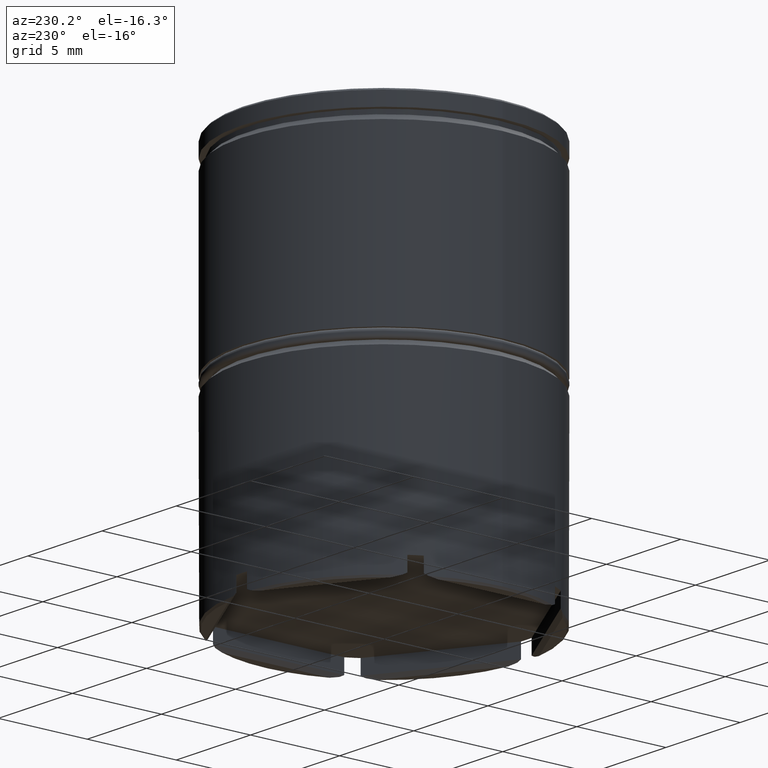
[diagram: clean part render]
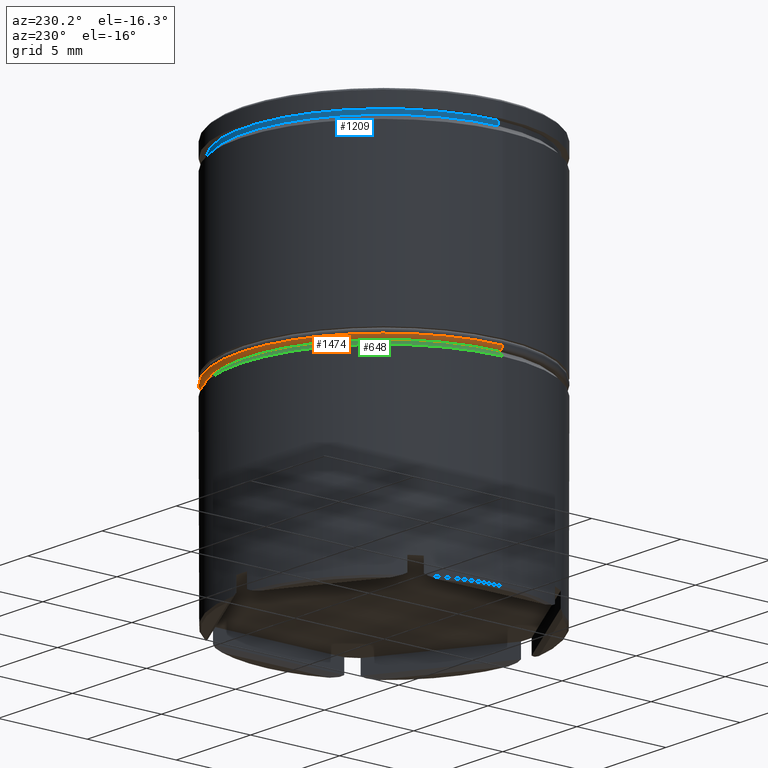
[diagram: same view with three faces highlighted in distinct colors, each labeled with its STEP entity id]
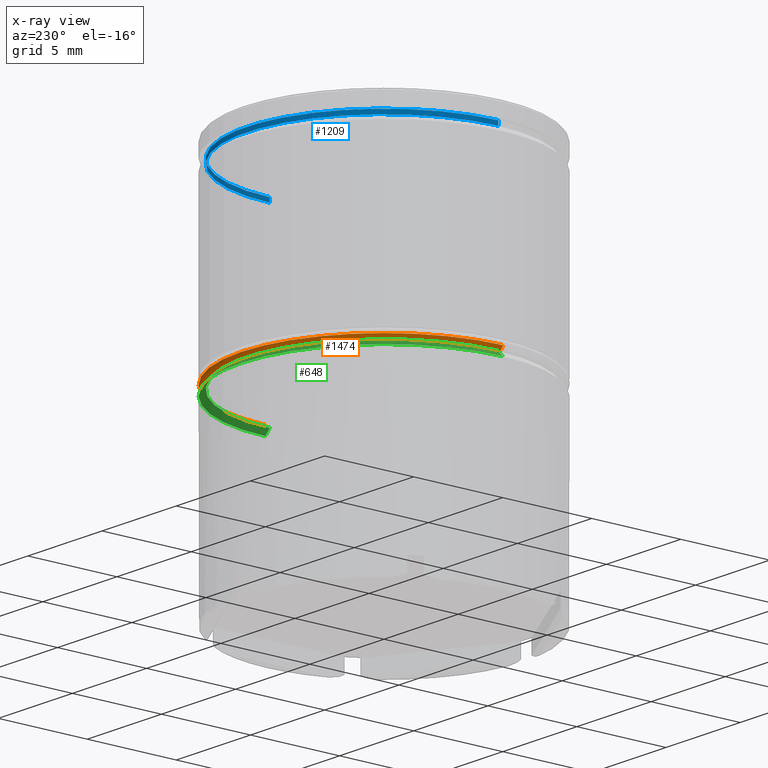
[diagram: x-ray of the same camera — body ghosted, the three highlighted faces saturated]
A machine part, auxiliary view with three faces highlighted in distinct colors.
The next image is the same camera in x-ray (body ghosted, the three faces saturated) — at least one of them is partly hidden behind the body in this view.
Their STEP definitions:

[orange] entity #1474 — the highlighted toroidal blend (fillet) surface has major radius 7.8 mm and minor (blend) radius 0.2 mm.
#44 = CARTESIAN_POINT ( 'NONE',  ( -7.800000000000000711, 9.674709713264090115E-16, -11.24999999999999822 ) ) ;
#100 = CIRCLE ( 'NONE', #1190, 8.000000000000000000 ) ;
#104 = VERTEX_POINT ( 'NONE', #891 ) ;
#144 = CARTESIAN_POINT ( 'NONE',  ( 0.000000000000000000, 0.000000000000000000, -11.24999999999999822 ) ) ;
#169 = DIRECTION ( 'NONE',  ( 0.000000000000000000, 0.000000000000000000, 1.000000000000000000 ) ) ;
#288 = AXIS2_PLACEMENT_3D ( 'NONE', #1483, #1118, #759 ) ;
#324 = ORIENTED_EDGE ( 'NONE', *, *, #492, .T. ) ;
#325 = DIRECTION ( 'NONE',  ( -1.000000000000000000, 1.224646799147358384E-16, 0.000000000000000000 ) ) ;
#358 = VERTEX_POINT ( 'NONE', #1136 ) ;
#397 = EDGE_CURVE ( 'NONE', #710, #358, #950, .T. ) ;
#449 = TOROIDAL_SURFACE ( 'NONE', #790, 7.800000000000000711, 0.2000000000000000111 ) ;
#484 = EDGE_CURVE ( 'NONE', #664, #104, #100, .T. ) ;
#492 = EDGE_CURVE ( 'NONE', #710, #104, #1216, .T. ) ;
#528 = DIRECTION ( 'NONE',  ( 1.000000000000000000, 0.000000000000000000, 0.000000000000000000 ) ) ;
#560 = DIRECTION ( 'NONE',  ( 1.000000000000000000, 0.000000000000000000, 0.000000000000000000 ) ) ;
#569 = DIRECTION ( 'NONE',  ( 1.224646799147353207E-16, 1.000000000000000000, -0.000000000000000000 ) ) ;
#574 = EDGE_LOOP ( 'NONE', ( #647, #324, #908, #1511 ) ) ;
#636 = DIRECTION ( 'NONE',  ( -0.000000000000000000, -0.000000000000000000, -1.000000000000000000 ) ) ;
#647 = ORIENTED_EDGE ( 'NONE', *, *, #397, .F. ) ;
#653 = CARTESIAN_POINT ( 'NONE',  ( 0.000000000000000000, 0.000000000000000000, -11.04999999999999716 ) ) ;
#664 = VERTEX_POINT ( 'NONE', #1262 ) ;
#695 = CARTESIAN_POINT ( 'NONE',  ( 0.000000000000000000, 0.000000000000000000, -11.04999999999999716 ) ) ;
#710 = VERTEX_POINT ( 'NONE', #44 ) ;
#759 = DIRECTION ( 'NONE',  ( 0.000000000000000000, 0.000000000000000000, -1.000000000000000000 ) ) ;
#790 = AXIS2_PLACEMENT_3D ( 'NONE', #653, #1290, #528 ) ;
#810 = FACE_OUTER_BOUND ( 'NONE', #574, .T. ) ;
#891 = CARTESIAN_POINT ( 'NONE',  ( -8.000000000000000000, 9.797174393178823685E-16, -11.04999999999999716 ) ) ;
#908 = ORIENTED_EDGE ( 'NONE', *, *, #484, .F. ) ;
#950 = CIRCLE ( 'NONE', #1317, 7.800000000000000711 ) ;
#1000 = AXIS2_PLACEMENT_3D ( 'NONE', #1552, #569, #325 ) ;
#1118 = DIRECTION ( 'NONE',  ( 0.000000000000000000, -1.000000000000000000, 0.000000000000000000 ) ) ;
#1136 = CARTESIAN_POINT ( 'NONE',  ( 7.800000000000000711, 0.000000000000000000, -11.24999999999999822 ) ) ;
#1148 = EDGE_CURVE ( 'NONE', #358, #664, #1500, .T. ) ;
#1190 = AXIS2_PLACEMENT_3D ( 'NONE', #695, #169, #560 ) ;
#1216 = CIRCLE ( 'NONE', #1000, 0.1999999999999996503 ) ;
#1262 = CARTESIAN_POINT ( 'NONE',  ( 8.000000000000000000, 0.000000000000000000, -11.04999999999999716 ) ) ;
#1290 = DIRECTION ( 'NONE',  ( 0.000000000000000000, 0.000000000000000000, 1.000000000000000000 ) ) ;
#1317 = AXIS2_PLACEMENT_3D ( 'NONE', #144, #636, #1635 ) ;
#1474 = ADVANCED_FACE ( 'NONE', ( #810 ), #449, .T. ) ;
#1483 = CARTESIAN_POINT ( 'NONE',  ( 7.800000000000000711, 0.000000000000000000, -11.04999999999999716 ) ) ;
#1500 = CIRCLE ( 'NONE', #288, 0.2000000000000005107 ) ;
#1511 = ORIENTED_EDGE ( 'NONE', *, *, #1148, .F. ) ;
#1552 = CARTESIAN_POINT ( 'NONE',  ( -7.800000000000000711, 9.552245033349356544E-16, -11.04999999999999716 ) ) ;
#1635 = DIRECTION ( 'NONE',  ( 1.000000000000000000, 0.000000000000000000, 0.000000000000000000 ) ) ;

[blue] entity #1209 — the highlighted cylindrical surface (partial cylindrical patch) has radius 7.7 mm, axis along (-0, -0, 1).
#172 = LINE ( 'NONE', #303, #897 ) ;
#257 = CIRCLE ( 'NONE', #1389, 7.700000000000000178 ) ;
#272 = VERTEX_POINT ( 'NONE', #1431 ) ;
#298 = EDGE_CURVE ( 'NONE', #801, #272, #257, .T. ) ;
#303 = CARTESIAN_POINT ( 'NONE',  ( 7.700000000000000178, 0.000000000000000000, 0.000000000000000000 ) ) ;
#367 = AXIS2_PLACEMENT_3D ( 'NONE', #971, #1470, #1231 ) ;
#390 = DIRECTION ( 'NONE',  ( 1.000000000000000000, 0.000000000000000000, 0.000000000000000000 ) ) ;
#646 = DIRECTION ( 'NONE',  ( -0.000000000000000000, -0.000000000000000000, 1.000000000000000000 ) ) ;
#673 = LINE ( 'NONE', #899, #1242 ) ;
#699 = DIRECTION ( 'NONE',  ( -0.000000000000000000, -0.000000000000000000, 1.000000000000000000 ) ) ;
#715 = CARTESIAN_POINT ( 'NONE',  ( 7.700000000000000178, 0.000000000000000000, -1.125000000000000222 ) ) ;
#736 = EDGE_LOOP ( 'NONE', ( #859, #783, #1333, #1557 ) ) ;
#778 = VERTEX_POINT ( 'NONE', #1280 ) ;
#783 = ORIENTED_EDGE ( 'NONE', *, *, #794, .T. ) ;
#794 = EDGE_CURVE ( 'NONE', #778, #272, #673, .T. ) ;
#801 = VERTEX_POINT ( 'NONE', #1396 ) ;
#819 = EDGE_CURVE ( 'NONE', #1561, #801, #172, .T. ) ;
#859 = ORIENTED_EDGE ( 'NONE', *, *, #935, .T. ) ;
#872 = CARTESIAN_POINT ( 'NONE',  ( 0.000000000000000000, 0.000000000000000000, 0.000000000000000000 ) ) ;
#897 = VECTOR ( 'NONE', #699, 1000.000000000000000 ) ;
#899 = CARTESIAN_POINT ( 'NONE',  ( -7.700000000000000178, 9.429780353434619030E-16, 0.000000000000000000 ) ) ;
#935 = EDGE_CURVE ( 'NONE', #1561, #778, #1391, .T. ) ;
#971 = CARTESIAN_POINT ( 'NONE',  ( 0.000000000000000000, 0.000000000000000000, -1.125000000000000222 ) ) ;
#1050 = DIRECTION ( 'NONE',  ( -0.000000000000000000, -0.000000000000000000, 1.000000000000000000 ) ) ;
#1097 = CYLINDRICAL_SURFACE ( 'NONE', #1214, 7.700000000000000178 ) ;
#1101 = FACE_OUTER_BOUND ( 'NONE', #736, .T. ) ;
#1209 = ADVANCED_FACE ( 'NONE', ( #1101 ), #1097, .T. ) ;
#1214 = AXIS2_PLACEMENT_3D ( 'NONE', #872, #1589, #1466 ) ;
#1231 = DIRECTION ( 'NONE',  ( 1.000000000000000000, 0.000000000000000000, 0.000000000000000000 ) ) ;
#1242 = VECTOR ( 'NONE', #1050, 1000.000000000000000 ) ;
#1280 = CARTESIAN_POINT ( 'NONE',  ( -7.700000000000000178, 9.429780353434619030E-16, -1.125000000000000222 ) ) ;
#1333 = ORIENTED_EDGE ( 'NONE', *, *, #298, .F. ) ;
#1389 = AXIS2_PLACEMENT_3D ( 'NONE', #1399, #646, #390 ) ;
#1391 = CIRCLE ( 'NONE', #367, 7.700000000000000178 ) ;
#1396 = CARTESIAN_POINT ( 'NONE',  ( 7.700000000000000178, 0.000000000000000000, -0.8749999999999998890 ) ) ;
#1399 = CARTESIAN_POINT ( 'NONE',  ( 0.000000000000000000, 0.000000000000000000, -0.8749999999999998890 ) ) ;
#1431 = CARTESIAN_POINT ( 'NONE',  ( -7.700000000000000178, 9.429780353434619030E-16, -0.8749999999999998890 ) ) ;
#1466 = DIRECTION ( 'NONE',  ( 1.000000000000000000, 0.000000000000000000, 0.000000000000000000 ) ) ;
#1470 = DIRECTION ( 'NONE',  ( -0.000000000000000000, -0.000000000000000000, 1.000000000000000000 ) ) ;
#1557 = ORIENTED_EDGE ( 'NONE', *, *, #819, .F. ) ;
#1561 = VERTEX_POINT ( 'NONE', #715 ) ;
#1589 = DIRECTION ( 'NONE',  ( -0.000000000000000000, -0.000000000000000000, 1.000000000000000000 ) ) ;

[green] entity #648 — the highlighted conical surface has half-angle 45 deg.
#41 = CARTESIAN_POINT ( 'NONE',  ( 8.000000000000000000, 0.000000000000000000, -11.54999999999999893 ) ) ;
#94 = ORIENTED_EDGE ( 'NONE', *, *, #1156, .F. ) ;
#212 = VECTOR ( 'NONE', #856, 1000.000000000000000 ) ;
#241 = LINE ( 'NONE', #1021, #1469 ) ;
#245 = LINE ( 'NONE', #486, #212 ) ;
#249 = DIRECTION ( 'NONE',  ( -1.000000000000000000, 0.000000000000000000, 0.000000000000000000 ) ) ;
#280 = VERTEX_POINT ( 'NONE', #442 ) ;
#342 = DIRECTION ( 'NONE',  ( -0.000000000000000000, -0.000000000000000000, 1.000000000000000000 ) ) ;
#345 = AXIS2_PLACEMENT_3D ( 'NONE', #879, #342, #364 ) ;
#364 = DIRECTION ( 'NONE',  ( 1.000000000000000000, 0.000000000000000000, 0.000000000000000000 ) ) ;
#387 = FACE_OUTER_BOUND ( 'NONE', #1210, .T. ) ;
#402 = ORIENTED_EDGE ( 'NONE', *, *, #624, .F. ) ;
#442 = CARTESIAN_POINT ( 'NONE',  ( 7.700000000000000178, 0.000000000000000000, -11.25000000000000000 ) ) ;
#482 = VERTEX_POINT ( 'NONE', #1308 ) ;
#486 = CARTESIAN_POINT ( 'NONE',  ( 7.700000000000001954, 9.429780353434622974E-16, -11.25000000000000000 ) ) ;
#534 = VERTEX_POINT ( 'NONE', #41 ) ;
#624 = EDGE_CURVE ( 'NONE', #1090, #482, #241, .T. ) ;
#638 = AXIS2_PLACEMENT_3D ( 'NONE', #1521, #1618, #249 ) ;
#648 = ADVANCED_FACE ( 'NONE', ( #387 ), #1340, .T. ) ;
#726 = DIRECTION ( 'NONE',  ( 1.000000000000000000, 0.000000000000000000, 0.000000000000000000 ) ) ;
#812 = ORIENTED_EDGE ( 'NONE', *, *, #1180, .T. ) ;
#856 = DIRECTION ( 'NONE',  ( 0.7071067811865454633, 8.659560562354908206E-17, -0.7071067811865495711 ) ) ;
#879 = CARTESIAN_POINT ( 'NONE',  ( 0.000000000000000000, 0.000000000000000000, -11.25000000000000000 ) ) ;
#1020 = CARTESIAN_POINT ( 'NONE',  ( -7.700000000000000178, 9.429780353434619030E-16, -11.25000000000000000 ) ) ;
#1021 = CARTESIAN_POINT ( 'NONE',  ( -7.700000000000001954, 0.000000000000000000, -11.25000000000000000 ) ) ;
#1090 = VERTEX_POINT ( 'NONE', #1020 ) ;
#1126 = EDGE_CURVE ( 'NONE', #280, #1090, #1132, .T. ) ;
#1132 = CIRCLE ( 'NONE', #345, 7.700000000000000178 ) ;
#1149 = DIRECTION ( 'NONE',  ( -0.7071067811865454633, 0.000000000000000000, -0.7071067811865495711 ) ) ;
#1156 = EDGE_CURVE ( 'NONE', #482, #534, #1547, .T. ) ;
#1180 = EDGE_CURVE ( 'NONE', #280, #534, #245, .T. ) ;
#1210 = EDGE_LOOP ( 'NONE', ( #1325, #812, #94, #402 ) ) ;
#1259 = CARTESIAN_POINT ( 'NONE',  ( 0.000000000000000000, 0.000000000000000000, -11.54999999999999893 ) ) ;
#1308 = CARTESIAN_POINT ( 'NONE',  ( -8.000000000000000000, 9.797174393178825657E-16, -11.54999999999999893 ) ) ;
#1325 = ORIENTED_EDGE ( 'NONE', *, *, #1126, .F. ) ;
#1340 = CONICAL_SURFACE ( 'NONE', #638, 7.700000000000001954, 0.7853981633974453924 ) ;
#1343 = AXIS2_PLACEMENT_3D ( 'NONE', #1259, #1615, #726 ) ;
#1469 = VECTOR ( 'NONE', #1149, 1000.000000000000000 ) ;
#1521 = CARTESIAN_POINT ( 'NONE',  ( 0.000000000000000000, 0.000000000000000000, -11.25000000000000000 ) ) ;
#1547 = CIRCLE ( 'NONE', #1343, 8.000000000000000000 ) ;
#1615 = DIRECTION ( 'NONE',  ( 0.000000000000000000, 0.000000000000000000, -1.000000000000000000 ) ) ;
#1618 = DIRECTION ( 'NONE',  ( 0.000000000000000000, 0.000000000000000000, -1.000000000000000000 ) ) ;